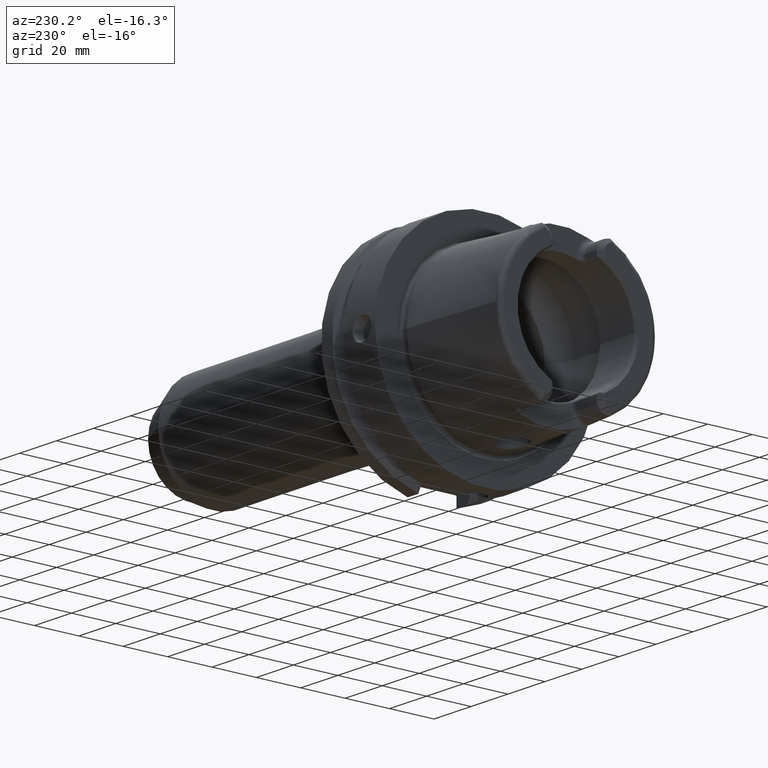
[diagram: clean part render]
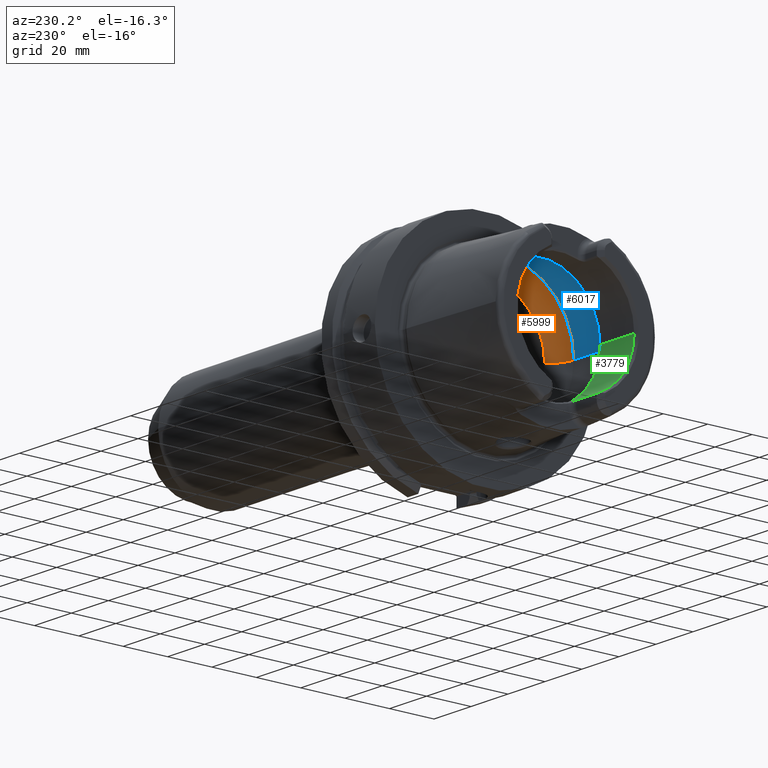
[diagram: same view with three faces highlighted in distinct colors, each labeled with its STEP entity id]
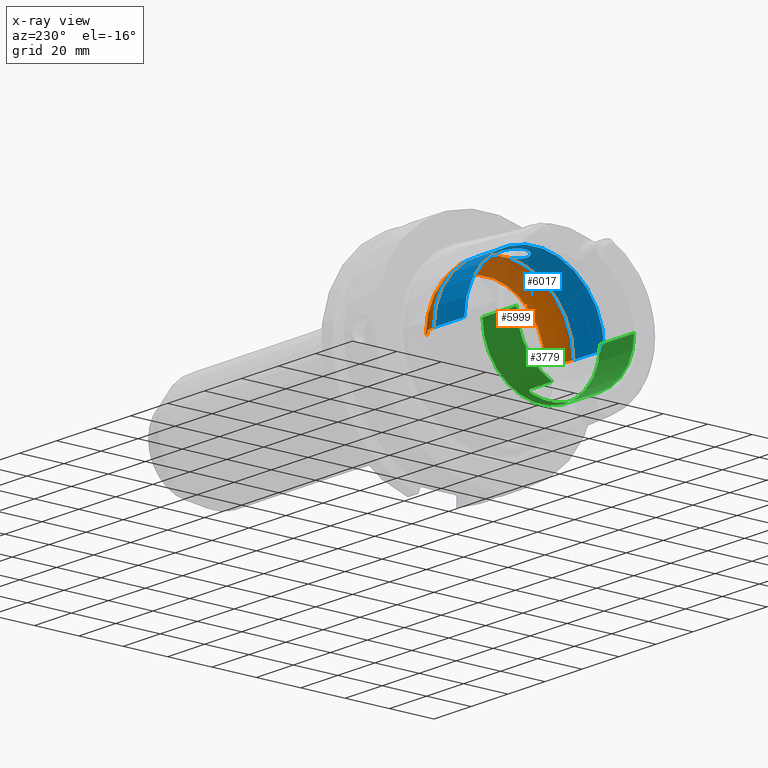
[diagram: x-ray of the same camera — body ghosted, the three highlighted faces saturated]
A machine part, auxiliary view with three faces highlighted in distinct colors.
The next image is the same camera in x-ray (body ghosted, the three faces saturated) — at least one of them is partly hidden behind the body in this view.
Their STEP definitions:

[orange] entity #5999 — the highlighted toroidal blend (fillet) surface has major radius 19.5 mm and minor (blend) radius 12 mm.
#2246=CARTESIAN_POINT('',(-9.E0,0.E0,3.147008518506E1));
#2247=CARTESIAN_POINT('',(-9.E0,2.141252053900E-1,3.147008518506E1));
#2248=CARTESIAN_POINT('',(-9.022897579641E0,6.436731047292E-1,
3.146736073712E1));
#2249=CARTESIAN_POINT('',(-9.127427069178E0,1.286248325661E0,3.145454181001E1));
#2250=CARTESIAN_POINT('',(-9.301031145484E0,1.913730198969E0,3.143197920586E1));
#2251=CARTESIAN_POINT('',(-9.539946842554E0,2.515068696018E0,3.139832080387E1));
#2252=CARTESIAN_POINT('',(-9.738529982809E0,2.891645116602E0,3.136752560017E1));
#2253=CARTESIAN_POINT('',(-9.846794344809E0,3.073185883624E0,3.134972932139E1));
#2255=CARTESIAN_POINT('',(-9.846794344809E0,-3.073185883624E0,
3.134972932139E1));
#2256=CARTESIAN_POINT('',(-9.738534471789E0,-2.891652643851E0,
3.136752486228E1));
#2257=CARTESIAN_POINT('',(-9.539946477828E0,-2.515078628379E0,
3.139832107651E1));
#2258=CARTESIAN_POINT('',(-9.300974895981E0,-1.913573808680E0,
3.143198691417E1));
#2259=CARTESIAN_POINT('',(-9.127396838585E0,-1.286102505522E0,
3.145454553504E1));
#2260=CARTESIAN_POINT('',(-9.022886850943E0,-6.435548392987E-1,
3.146736203025E1));
#2261=CARTESIAN_POINT('',(-9.E0,-2.140793620984E-1,3.147008518506E1));
#2262=CARTESIAN_POINT('',(-9.E0,0.E0,3.147008518506E1));
#2264=CARTESIAN_POINT('',(-1.E-1,0.E0,0.E0));
#2265=DIRECTION('',(1.E0,0.E0,0.E0));
#2266=DIRECTION('',(0.E0,1.E0,0.E0));
#2267=AXIS2_PLACEMENT_3D('',#2264,#2265,#2266);
#2293=CARTESIAN_POINT('',(-9.846794344809E0,0.E0,0.E0));
#2294=DIRECTION('',(1.E0,0.E0,0.E0));
#2295=DIRECTION('',(0.E0,1.E0,0.E0));
#2296=AXIS2_PLACEMENT_3D('',#2293,#2294,#2295);
#2298=CARTESIAN_POINT('',(-9.846794344809E0,0.E0,0.E0));
#2299=DIRECTION('',(1.E0,0.E0,0.E0));
#2300=DIRECTION('',(0.E0,-9.756145662299E-2,9.952295022665E-1));
#2301=AXIS2_PLACEMENT_3D('',#2298,#2299,#2300);
#2402=CARTESIAN_POINT('',(-9.846794344809E0,1.95E1,0.E0));
#2403=DIRECTION('',(0.E0,0.E0,1.E0));
#2404=DIRECTION('',(8.122328620674E-1,5.833333333333E-1,0.E0));
#2405=AXIS2_PLACEMENT_3D('',#2402,#2403,#2404);
#2412=CARTESIAN_POINT('',(-9.846794344809E0,-1.95E1,0.E0));
#2413=DIRECTION('',(0.E0,0.E0,-1.E0));
#2414=DIRECTION('',(8.122328620674E-1,-5.833333333333E-1,0.E0));
#2415=AXIS2_PLACEMENT_3D('',#2412,#2413,#2414);
#2917=CARTESIAN_POINT('',(-1.E-1,2.65E1,0.E0));
#2918=VERTEX_POINT('',#2917);
#2919=CARTESIAN_POINT('',(-9.846794344809E0,3.15E1,0.E0));
#2920=VERTEX_POINT('',#2919);
#2929=CARTESIAN_POINT('',(-1.E-1,-2.65E1,0.E0));
#2930=VERTEX_POINT('',#2929);
#2931=CARTESIAN_POINT('',(-9.846794344809E0,-3.15E1,0.E0));
#2932=VERTEX_POINT('',#2931);
#3098=VERTEX_POINT('',#2246);
#3099=VERTEX_POINT('',#2253);
#3100=VERTEX_POINT('',#2255);
#5980=CARTESIAN_POINT('',(-9.846794344809E0,0.E0,0.E0));
#5981=DIRECTION('',(1.E0,0.E0,0.E0));
#5982=DIRECTION('',(0.E0,-1.E0,0.E0));
#5983=AXIS2_PLACEMENT_3D('',#5980,#5981,#5982);
#5984=TOROIDAL_SURFACE('',#5983,1.95E1,1.2E1);
#5985=ORIENTED_EDGE('',*,*,#5957,.F.);
#5986=ORIENTED_EDGE('',*,*,#5683,.F.);
#5988=ORIENTED_EDGE('',*,*,#5987,.T.);
#5990=ORIENTED_EDGE('',*,*,#5989,.F.);
#5992=ORIENTED_EDGE('',*,*,#5991,.F.);
#5994=ORIENTED_EDGE('',*,*,#5993,.T.);
#5996=ORIENTED_EDGE('',*,*,#5995,.T.);
#5997=EDGE_LOOP('',(#5985,#5986,#5988,#5990,#5992,#5994,#5996));
#5998=FACE_OUTER_BOUND('',#5997,.F.);
#5999=ADVANCED_FACE('',(#5998),#5984,.F.);
#2254=B_SPLINE_CURVE_WITH_KNOTS('',3,(#2246,#2247,#2248,#2249,#2250,#2251,#2252,
#2253),.UNSPECIFIED.,.F.,.F.,(4,1,1,1,1,4),(0.E0,2.E-1,4.E-1,6.E-1,8.E-1,1.E0),
.UNSPECIFIED.);
#2263=B_SPLINE_CURVE_WITH_KNOTS('',3,(#2255,#2256,#2257,#2258,#2259,#2260,#2261,
#2262),.UNSPECIFIED.,.F.,.F.,(4,1,1,1,1,4),(0.E0,2.E-1,4.E-1,6.E-1,8.E-1,1.E0),
.UNSPECIFIED.);
#2268=CIRCLE('',#2267,2.65E1);
#2297=CIRCLE('',#2296,3.15E1);
#2302=CIRCLE('',#2301,3.15E1);
#2406=CIRCLE('',#2405,1.2E1);
#2416=CIRCLE('',#2415,1.2E1);
#5683=EDGE_CURVE('',#3100,#3098,#2263,.T.);
#5957=EDGE_CURVE('',#3098,#3099,#2254,.T.);
#5987=EDGE_CURVE('',#3100,#2932,#2302,.T.);
#5989=EDGE_CURVE('',#2930,#2932,#2416,.T.);
#5991=EDGE_CURVE('',#2918,#2930,#2268,.T.);
#5993=EDGE_CURVE('',#2918,#2920,#2406,.T.);
#5995=EDGE_CURVE('',#2920,#3099,#2297,.T.);

[blue] entity #6017 — the highlighted cylindrical surface (partial cylindrical patch) has radius 31.5 mm, axis along (1, 0, 0).
#2253=CARTESIAN_POINT('',(-9.846794344809E0,3.073185883624E0,3.134972932139E1));
#2255=CARTESIAN_POINT('',(-9.846794344809E0,-3.073185883624E0,
3.134972932139E1));
#2269=CARTESIAN_POINT('',(-9.846794344809E0,3.073185883624E0,3.134972932139E1));
#2270=CARTESIAN_POINT('',(-9.979350610583E0,3.295460007053E0,3.132793998818E1));
#2271=CARTESIAN_POINT('',(-1.027063887730E1,3.719249728918E0,3.128166137702E1));
#2272=CARTESIAN_POINT('',(-1.079035808135E1,4.298920478732E0,3.120689190392E1));
#2273=CARTESIAN_POINT('',(-1.137898274965E1,4.805041081809E0,3.113254787077E1));
#2274=CARTESIAN_POINT('',(-1.202658779818E1,5.230450418473E0,3.106351678434E1));
#2275=CARTESIAN_POINT('',(-1.271973952812E1,5.567575114105E0,3.100453126817E1));
#2276=CARTESIAN_POINT('',(-1.345035493347E1,5.813488696578E0,3.095911024256E1));
#2277=CARTESIAN_POINT('',(-1.420764120587E1,5.964169161635E0,3.093027187856E1));
#2278=CARTESIAN_POINT('',(-1.497984446875E1,6.016521870398E0,3.092007259785E1));
#2279=CARTESIAN_POINT('',(-1.575309935594E1,5.969543750814E0,3.092922961197E1));
#2280=CARTESIAN_POINT('',(-1.652541066125E1,5.820717381311E0,3.095775345043E1));
#2281=CARTESIAN_POINT('',(-1.727341934717E1,5.571094163642E0,3.100391709528E1));
#2282=CARTESIAN_POINT('',(-1.797719195757E1,5.228690177102E0,3.106382935769E1));
#2283=CARTESIAN_POINT('',(-1.863207171596E1,4.797562142056E0,3.113375842146E1));
#2284=CARTESIAN_POINT('',(-1.923624043330E1,4.274224967480E0,3.121040427516E1));
#2285=CARTESIAN_POINT('',(-1.976613927382E1,3.673557002686E0,3.128721124755E1));
#2286=CARTESIAN_POINT('',(-2.020637808011E1,3.016563255921E0,3.135771603394E1));
#2287=CARTESIAN_POINT('',(-2.055582787998E1,2.311076998962E0,3.141795380196E1));
#2288=CARTESIAN_POINT('',(-2.081257397864E1,1.557663843048E0,3.146462805191E1));
#2289=CARTESIAN_POINT('',(-2.096662575255E1,7.779183163064E-1,
3.149361665994E1));
#2290=CARTESIAN_POINT('',(-2.1E1,2.599995876471E-1,3.15E1));
#2291=CARTESIAN_POINT('',(-2.1E1,0.E0,3.15E1));
#2293=CARTESIAN_POINT('',(-9.846794344809E0,0.E0,0.E0));
#2294=DIRECTION('',(1.E0,0.E0,0.E0));
#2295=DIRECTION('',(0.E0,1.E0,0.E0));
#2296=AXIS2_PLACEMENT_3D('',#2293,#2294,#2295);
#2298=CARTESIAN_POINT('',(-9.846794344809E0,0.E0,0.E0));
#2299=DIRECTION('',(1.E0,0.E0,0.E0));
#2300=DIRECTION('',(0.E0,-9.756145662299E-2,9.952295022665E-1));
#2301=AXIS2_PLACEMENT_3D('',#2298,#2299,#2300);
#2303=CARTESIAN_POINT('',(-2.1E1,0.E0,3.15E1));
#2304=CARTESIAN_POINT('',(-2.1E1,-2.571227322628E-1,3.15E1));
#2305=CARTESIAN_POINT('',(-2.096736472421E1,-7.693984126219E-1,
3.149375838501E1));
#2306=CARTESIAN_POINT('',(-2.081659080202E1,-1.541049857093E0,
3.146537963405E1));
#2307=CARTESIAN_POINT('',(-2.056550243220E1,-2.286682308644E0,
3.141968549161E1));
#2308=CARTESIAN_POINT('',(-2.022340587255E1,-2.986151195866E0,
3.136058293097E1));
#2309=CARTESIAN_POINT('',(-1.979326828629E1,-3.637340617479E0,
3.129140992251E1));
#2310=CARTESIAN_POINT('',(-1.927478905529E1,-4.235071698102E0,
3.121573223434E1));
#2311=CARTESIAN_POINT('',(-1.868247740736E1,-4.758599460883E0,
3.113974969594E1));
#2312=CARTESIAN_POINT('',(-1.803686661027E1,-5.194005287447E0,
3.106967109408E1));
#2313=CARTESIAN_POINT('',(-1.734161583992E1,-5.542612510908E0,
3.100904668501E1));
#2314=CARTESIAN_POINT('',(-1.659831672384E1,-5.801097428712E0,
3.096145823760E1));
#2315=CARTESIAN_POINT('',(-1.582796267308E1,-5.959654019058E0,
3.093114785940E1));
#2316=CARTESIAN_POINT('',(-1.505461105168E1,-6.016295452388E0,
3.092011677740E1));
#2317=CARTESIAN_POINT('',(-1.428037054876E1,-5.973681036842E0,
3.092842594800E1));
#2318=CARTESIAN_POINT('',(-1.350797364848E1,-5.829331845562E0,
3.095612333536E1));
#2319=CARTESIAN_POINT('',(-1.275967231567E1,-5.584336729774E0,
3.100151619127E1));
#2320=CARTESIAN_POINT('',(-1.205825931241E1,-5.248465876117E0,
3.106046672590E1));
#2321=CARTESIAN_POINT('',(-1.140515180586E1,-4.825059400574E0,
3.112945635419E1));
#2322=CARTESIAN_POINT('',(-1.080442776173E1,-4.313579447853E0,
3.120492076547E1));
#2323=CARTESIAN_POINT('',(-1.027427619122E1,-3.724621952008E0,
3.128107616940E1));
#2324=CARTESIAN_POINT('',(-9.980265351482E0,-3.296993870656E0,
3.132778962490E1));
#2325=CARTESIAN_POINT('',(-9.846794344809E0,-3.073185883624E0,
3.134972932139E1));
#2380=DIRECTION('',(-1.E0,0.E0,0.E0));
#2381=VECTOR('',#2380,1.640380457843E1);
#2382=CARTESIAN_POINT('',(-9.846794344809E0,-3.15E1,0.E0));
#2383=LINE('',#2382,#2381);
#2384=DIRECTION('',(-1.E0,0.E0,0.E0));
#2385=VECTOR('',#2384,1.640380457843E1);
#2386=CARTESIAN_POINT('',(-9.846794344809E0,3.15E1,0.E0));
#2387=LINE('',#2386,#2385);
#2637=CARTESIAN_POINT('',(-2.625059892324E1,0.E0,0.E0));
#2638=DIRECTION('',(1.E0,0.E0,0.E0));
#2639=DIRECTION('',(0.E0,1.E0,0.E0));
#2640=AXIS2_PLACEMENT_3D('',#2637,#2638,#2639);
#2919=CARTESIAN_POINT('',(-9.846794344809E0,3.15E1,0.E0));
#2920=VERTEX_POINT('',#2919);
#2921=CARTESIAN_POINT('',(-2.625059892324E1,3.15E1,0.E0));
#2922=VERTEX_POINT('',#2921);
#2931=CARTESIAN_POINT('',(-9.846794344809E0,-3.15E1,0.E0));
#2932=VERTEX_POINT('',#2931);
#2933=CARTESIAN_POINT('',(-2.625059892324E1,-3.15E1,0.E0));
#2934=VERTEX_POINT('',#2933);
#3099=VERTEX_POINT('',#2253);
#3100=VERTEX_POINT('',#2255);
#3101=VERTEX_POINT('',#2291);
#6000=CARTESIAN_POINT('',(-5.3125E1,0.E0,0.E0));
#6001=DIRECTION('',(1.E0,0.E0,0.E0));
#6002=DIRECTION('',(0.E0,-1.E0,0.E0));
#6003=AXIS2_PLACEMENT_3D('',#6000,#6001,#6002);
#6004=CYLINDRICAL_SURFACE('',#6003,3.15E1);
#6005=ORIENTED_EDGE('',*,*,#5959,.F.);
#6006=ORIENTED_EDGE('',*,*,#5995,.F.);
#6008=ORIENTED_EDGE('',*,*,#6007,.T.);
#6010=ORIENTED_EDGE('',*,*,#6009,.T.);
#6012=ORIENTED_EDGE('',*,*,#6011,.F.);
#6013=ORIENTED_EDGE('',*,*,#5987,.F.);
#6014=ORIENTED_EDGE('',*,*,#5681,.F.);
#6015=EDGE_LOOP('',(#6005,#6006,#6008,#6010,#6012,#6013,#6014));
#6016=FACE_OUTER_BOUND('',#6015,.F.);
#6017=ADVANCED_FACE('',(#6016),#6004,.F.);
#2292=B_SPLINE_CURVE_WITH_KNOTS('',3,(#2269,#2270,#2271,#2272,#2273,#2274,#2275,
#2276,#2277,#2278,#2279,#2280,#2281,#2282,#2283,#2284,#2285,#2286,#2287,#2288,
#2289,#2290,#2291),.UNSPECIFIED.,.F.,.F.,(4,1,1,1,1,1,1,1,1,1,1,1,1,1,1,1,1,1,1,
1,4),(0.E0,5.E-2,1.E-1,1.5E-1,2.E-1,2.5E-1,3.E-1,3.5E-1,4.E-1,4.5E-1,5.E-1,
5.5E-1,6.E-1,6.5E-1,7.E-1,7.5E-1,8.E-1,8.5E-1,9.E-1,9.5E-1,1.E0),.UNSPECIFIED.);
#2297=CIRCLE('',#2296,3.15E1);
#2302=CIRCLE('',#2301,3.15E1);
#2326=B_SPLINE_CURVE_WITH_KNOTS('',3,(#2303,#2304,#2305,#2306,#2307,#2308,#2309,
#2310,#2311,#2312,#2313,#2314,#2315,#2316,#2317,#2318,#2319,#2320,#2321,#2322,
#2323,#2324,#2325),.UNSPECIFIED.,.F.,.F.,(4,1,1,1,1,1,1,1,1,1,1,1,1,1,1,1,1,1,1,
1,4),(0.E0,5.E-2,1.E-1,1.5E-1,2.E-1,2.5E-1,3.E-1,3.5E-1,4.E-1,4.5E-1,5.E-1,
5.5E-1,6.E-1,6.5E-1,7.E-1,7.5E-1,8.E-1,8.5E-1,9.E-1,9.5E-1,1.E0),.UNSPECIFIED.);
#2641=CIRCLE('',#2640,3.15E1);
#5681=EDGE_CURVE('',#3101,#3100,#2326,.T.);
#5959=EDGE_CURVE('',#3099,#3101,#2292,.T.);
#5987=EDGE_CURVE('',#3100,#2932,#2302,.T.);
#5995=EDGE_CURVE('',#2920,#3099,#2297,.T.);
#6007=EDGE_CURVE('',#2920,#2922,#2387,.T.);
#6009=EDGE_CURVE('',#2922,#2934,#2641,.T.);
#6011=EDGE_CURVE('',#2932,#2934,#2383,.T.);

[green] entity #3779 — the highlighted cylindrical surface (partial cylindrical patch) has radius 26.5 mm, axis along (1, 0, 0).
#152=CARTESIAN_POINT('',(-4.85E1,1.051E1,-2.432673220965E1));
#172=CARTESIAN_POINT('',(-4.85E1,0.E0,0.E0));
#173=DIRECTION('',(-1.E0,0.E0,0.E0));
#174=DIRECTION('',(0.E0,1.E0,0.E0));
#175=AXIS2_PLACEMENT_3D('',#172,#173,#174);
#180=CARTESIAN_POINT('',(-4.85E1,-1.051E1,-2.432673220965E1));
#182=CARTESIAN_POINT('',(-4.85E1,0.E0,0.E0));
#183=DIRECTION('',(-1.E0,0.E0,0.E0));
#184=DIRECTION('',(0.E0,-3.966037735849E-1,-9.179898947038E-1));
#185=AXIS2_PLACEMENT_3D('',#182,#183,#184);
#454=CARTESIAN_POINT('',(-4.85E1,-1.051E1,-2.432673220965E1));
#455=CARTESIAN_POINT('',(-4.846009940760E1,-1.047009940760E1,
-2.434397066250E1));
#456=CARTESIAN_POINT('',(-4.842017594144E1,-1.043017594144E1,
-2.436110250799E1));
#457=CARTESIAN_POINT('',(-4.838022966775E1,-1.039022966775E1,
-2.437812805470E1));
#459=DIRECTION('',(1.E0,0.E0,0.E0));
#460=VECTOR('',#459,1.138022966775E1);
#461=CARTESIAN_POINT('',(-4.838022966775E1,-1.039022966775E1,
-2.437812805470E1));
#462=LINE('',#461,#460);
#463=CARTESIAN_POINT('',(-3.471132486541E1,-8.01E0,-2.526044140549E1));
#464=CARTESIAN_POINT('',(-3.470878365387E1,-8.120563234659E0,
-2.522538218006E1));
#465=CARTESIAN_POINT('',(-3.471906599640E1,-8.340498761004E0,
-2.515406323082E1));
#466=CARTESIAN_POINT('',(-3.478267622202E1,-8.672586520945E0,
-2.504149237512E1));
#467=CARTESIAN_POINT('',(-3.489268945815E1,-8.989467647906E0,
-2.492938353432E1));
#468=CARTESIAN_POINT('',(-3.504052322957E1,-9.277750297862E0,
-2.482340953473E1));
#469=CARTESIAN_POINT('',(-3.522199090026E1,-9.537479373862E0,
-2.472468297045E1));
#470=CARTESIAN_POINT('',(-3.543924040038E1,-9.773195748090E0,
-2.463237051390E1));
#471=CARTESIAN_POINT('',(-3.569196362013E1,-9.980705213956E0,
-2.454892857931E1));
#472=CARTESIAN_POINT('',(-3.598453186629E1,-1.015759575719E1,
-2.447617541727E1));
#473=CARTESIAN_POINT('',(-3.632143240491E1,-1.029570459018E1,
-2.441829554687E1));
#474=CARTESIAN_POINT('',(-3.667918985616E1,-1.037618705974E1,
-2.438412368561E1));
#475=CARTESIAN_POINT('',(-3.689481839480E1,-1.039022966775E1,
-2.437812805470E1));
#476=CARTESIAN_POINT('',(-3.7E1,-1.039022966775E1,-2.437812805470E1));
#478=CARTESIAN_POINT('',(-3.471132486541E1,8.01E0,-2.526044140549E1));
#479=CARTESIAN_POINT('',(-3.471132486541E1,7.271271578955E0,-2.549468967366E1));
#480=CARTESIAN_POINT('',(-3.471132486546E1,5.773250992792E0,-2.589833317849E1));
#481=CARTESIAN_POINT('',(-3.471132486544E1,3.481810319461E0,-2.630458298809E1));
#482=CARTESIAN_POINT('',(-3.471132486544E1,1.163586982585E0,-2.650849211583E1));
#483=CARTESIAN_POINT('',(-3.471132486544E1,-1.163586982585E0,
-2.650849211583E1));
#484=CARTESIAN_POINT('',(-3.471132486544E1,-3.481810319461E0,
-2.630458298809E1));
#485=CARTESIAN_POINT('',(-3.471132486546E1,-5.773250992791E0,
-2.589833317849E1));
#486=CARTESIAN_POINT('',(-3.471132486541E1,-7.271271578958E0,
-2.549468967366E1));
#487=CARTESIAN_POINT('',(-3.471132486541E1,-8.01E0,-2.526044140549E1));
#489=CARTESIAN_POINT('',(-3.7E1,1.039022966775E1,-2.437812805470E1));
#490=CARTESIAN_POINT('',(-3.689375760304E1,1.039022966775E1,-2.437812805470E1));
#491=CARTESIAN_POINT('',(-3.667635124759E1,1.037592175927E1,-2.438423721529E1));
#492=CARTESIAN_POINT('',(-3.631623052643E1,1.029415408513E1,-2.441895189414E1));
#493=CARTESIAN_POINT('',(-3.597947032639E1,1.015497495082E1,-2.447726388108E1));
#494=CARTESIAN_POINT('',(-3.568903934051E1,9.978495762119E0,-2.454982411868E1));
#495=CARTESIAN_POINT('',(-3.543805179144E1,9.771970406757E0,-2.463285308238E1));
#496=CARTESIAN_POINT('',(-3.522178538203E1,9.537157318169E0,-2.472480442904E1));
#497=CARTESIAN_POINT('',(-3.504048499348E1,9.277715471543E0,-2.482342368645E1));
#498=CARTESIAN_POINT('',(-3.489237648633E1,8.988811706632E0,-2.492962282131E1));
#499=CARTESIAN_POINT('',(-3.478230284625E1,8.671343229943E0,-2.504192722240E1));
#500=CARTESIAN_POINT('',(-3.471884880625E1,8.338547582645E0,-2.515470883480E1));
#501=CARTESIAN_POINT('',(-3.470880260289E1,8.119738798873E0,-2.522564360584E1));
#502=CARTESIAN_POINT('',(-3.471132486541E1,8.01E0,-2.526044140549E1));
#504=DIRECTION('',(1.E0,0.E0,0.E0));
#505=VECTOR('',#504,1.138022966775E1);
#506=CARTESIAN_POINT('',(-4.838022966775E1,1.039022966775E1,-2.437812805470E1));
#507=LINE('',#506,#505);
#508=CARTESIAN_POINT('',(-4.838022966775E1,1.039022966775E1,-2.437812805470E1));
#509=CARTESIAN_POINT('',(-4.842017594144E1,1.043017594144E1,-2.436110250799E1));
#510=CARTESIAN_POINT('',(-4.846009940760E1,1.047009940760E1,-2.434397066250E1));
#511=CARTESIAN_POINT('',(-4.85E1,1.051E1,-2.432673220965E1));
#513=DIRECTION('',(-1.E0,0.E0,0.E0));
#514=VECTOR('',#513,1.849662432703E1);
#515=CARTESIAN_POINT('',(-3.000337567297E1,2.65E1,0.E0));
#516=LINE('',#515,#514);
#517=CARTESIAN_POINT('',(-3.000337567297E1,0.E0,0.E0));
#518=DIRECTION('',(-1.E0,0.E0,0.E0));
#519=DIRECTION('',(0.E0,1.E0,0.E0));
#520=AXIS2_PLACEMENT_3D('',#517,#518,#519);
#522=DIRECTION('',(-1.E0,0.E0,0.E0));
#523=VECTOR('',#522,1.849662432703E1);
#524=CARTESIAN_POINT('',(-3.000337567297E1,-2.65E1,0.E0));
#525=LINE('',#524,#523);
#2925=CARTESIAN_POINT('',(-3.000337567297E1,2.65E1,0.E0));
#2926=VERTEX_POINT('',#2925);
#2927=CARTESIAN_POINT('',(-4.85E1,2.65E1,0.E0));
#2928=VERTEX_POINT('',#2927);
#2937=CARTESIAN_POINT('',(-3.000337567297E1,-2.65E1,0.E0));
#2938=VERTEX_POINT('',#2937);
#2939=CARTESIAN_POINT('',(-4.85E1,-2.65E1,0.E0));
#2940=VERTEX_POINT('',#2939);
#3050=CARTESIAN_POINT('',(-3.7E1,-1.039022966775E1,-2.437812805470E1));
#3051=VERTEX_POINT('',#3050);
#3052=CARTESIAN_POINT('',(-3.471132486541E1,-8.01E0,-2.526044140549E1));
#3053=VERTEX_POINT('',#3052);
#3054=CARTESIAN_POINT('',(-3.7E1,1.039022966775E1,-2.437812805470E1));
#3055=VERTEX_POINT('',#3054);
#3056=CARTESIAN_POINT('',(-3.471132486541E1,8.01E0,-2.526044140549E1));
#3057=VERTEX_POINT('',#3056);
#3074=CARTESIAN_POINT('',(-4.838022966775E1,1.039022966775E1,
-2.437812805470E1));
#3075=VERTEX_POINT('',#3074);
#3076=VERTEX_POINT('',#152);
#3093=CARTESIAN_POINT('',(-4.838022966775E1,-1.039022966775E1,
-2.437812805470E1));
#3094=VERTEX_POINT('',#3093);
#3095=VERTEX_POINT('',#180);
#3752=CARTESIAN_POINT('',(-5.3125E1,0.E0,0.E0));
#3753=DIRECTION('',(1.E0,0.E0,0.E0));
#3754=DIRECTION('',(0.E0,-1.E0,0.E0));
#3755=AXIS2_PLACEMENT_3D('',#3752,#3753,#3754);
#3756=CYLINDRICAL_SURFACE('',#3755,2.65E1);
#3758=ORIENTED_EDGE('',*,*,#3757,.T.);
#3760=ORIENTED_EDGE('',*,*,#3759,.T.);
#3762=ORIENTED_EDGE('',*,*,#3761,.F.);
#3764=ORIENTED_EDGE('',*,*,#3763,.F.);
#3766=ORIENTED_EDGE('',*,*,#3765,.F.);
#3767=ORIENTED_EDGE('',*,*,#3744,.F.);
#3768=ORIENTED_EDGE('',*,*,#3476,.T.);
#3769=ORIENTED_EDGE('',*,*,#3498,.F.);
#3771=ORIENTED_EDGE('',*,*,#3770,.F.);
#3773=ORIENTED_EDGE('',*,*,#3772,.T.);
#3775=ORIENTED_EDGE('',*,*,#3774,.T.);
#3776=ORIENTED_EDGE('',*,*,#3510,.F.);
#3777=EDGE_LOOP('',(#3758,#3760,#3762,#3764,#3766,#3767,#3768,#3769,#3771,#3773,
#3775,#3776));
#3778=FACE_OUTER_BOUND('',#3777,.F.);
#3779=ADVANCED_FACE('',(#3778),#3756,.F.);
#176=CIRCLE('',#175,2.65E1);
#186=CIRCLE('',#185,2.65E1);
#458=B_SPLINE_CURVE_WITH_KNOTS('',3,(#454,#455,#456,#457),.UNSPECIFIED.,.F.,.F.,
(4,4),(0.E0,1.E0),.UNSPECIFIED.);
#477=B_SPLINE_CURVE_WITH_KNOTS('',3,(#463,#464,#465,#466,#467,#468,#469,#470,
#471,#472,#473,#474,#475,#476),.UNSPECIFIED.,.F.,.F.,(4,1,1,1,1,1,1,1,1,1,1,4),(
0.E0,9.090909090909E-2,1.818181818182E-1,2.727272727273E-1,3.636363636364E-1,
4.545454545455E-1,5.454545454545E-1,6.363636363636E-1,7.272727272727E-1,
8.181818181818E-1,9.090909090909E-1,1.E0),.UNSPECIFIED.);
#488=B_SPLINE_CURVE_WITH_KNOTS('',3,(#478,#479,#480,#481,#482,#483,#484,#485,
#486,#487),.UNSPECIFIED.,.F.,.F.,(4,1,1,1,1,1,1,4),(0.E0,1.428571428571E-1,
2.857142857143E-1,4.285714285714E-1,5.714285714286E-1,7.142857142857E-1,
8.571428571429E-1,1.E0),.UNSPECIFIED.);
#503=B_SPLINE_CURVE_WITH_KNOTS('',3,(#489,#490,#491,#492,#493,#494,#495,#496,
#497,#498,#499,#500,#501,#502),.UNSPECIFIED.,.F.,.F.,(4,1,1,1,1,1,1,1,1,1,1,4),(
0.E0,9.090909090909E-2,1.818181818182E-1,2.727272727273E-1,3.636363636364E-1,
4.545454545455E-1,5.454545454545E-1,6.363636363636E-1,7.272727272727E-1,
8.181818181818E-1,9.090909090909E-1,1.E0),.UNSPECIFIED.);
#512=B_SPLINE_CURVE_WITH_KNOTS('',3,(#508,#509,#510,#511),.UNSPECIFIED.,.F.,.F.,
(4,4),(0.E0,1.E0),.UNSPECIFIED.);
#521=CIRCLE('',#520,2.65E1);
#3476=EDGE_CURVE('',#3075,#3076,#512,.T.);
#3498=EDGE_CURVE('',#2928,#3076,#176,.T.);
#3510=EDGE_CURVE('',#3095,#2940,#186,.T.);
#3744=EDGE_CURVE('',#3075,#3055,#507,.T.);
#3757=EDGE_CURVE('',#3095,#3094,#458,.T.);
#3759=EDGE_CURVE('',#3094,#3051,#462,.T.);
#3761=EDGE_CURVE('',#3053,#3051,#477,.T.);
#3763=EDGE_CURVE('',#3057,#3053,#488,.T.);
#3765=EDGE_CURVE('',#3055,#3057,#503,.T.);
#3770=EDGE_CURVE('',#2926,#2928,#516,.T.);
#3772=EDGE_CURVE('',#2926,#2938,#521,.T.);
#3774=EDGE_CURVE('',#2938,#2940,#525,.T.);